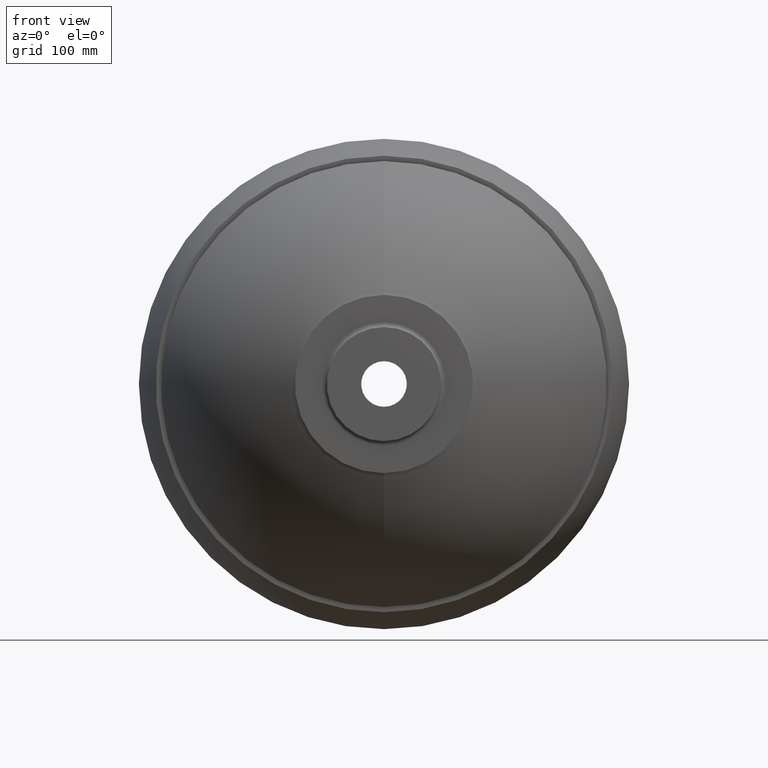
[diagram: clean part render]
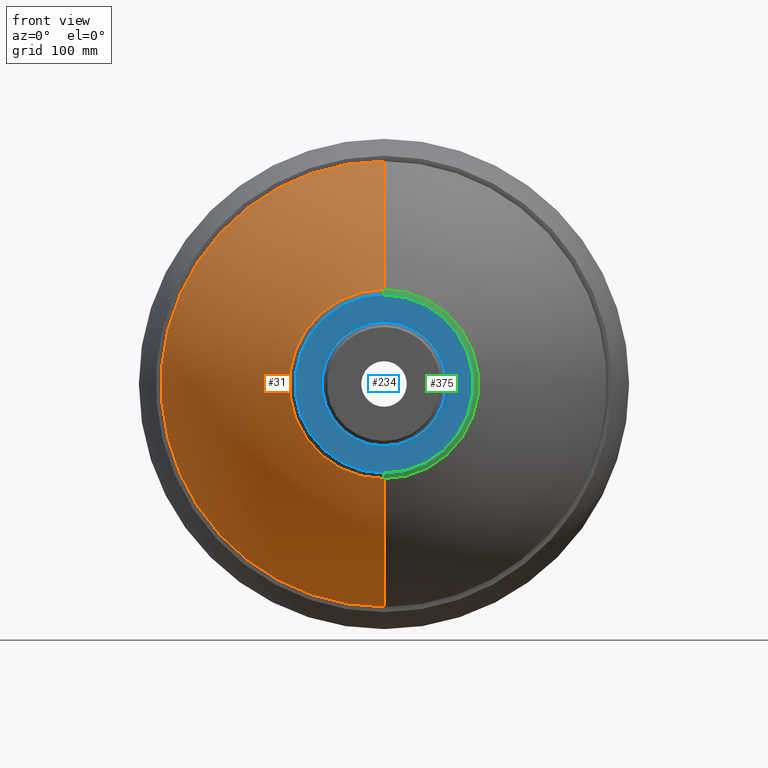
[diagram: same view with three faces highlighted in distinct colors, each labeled with its STEP entity id]
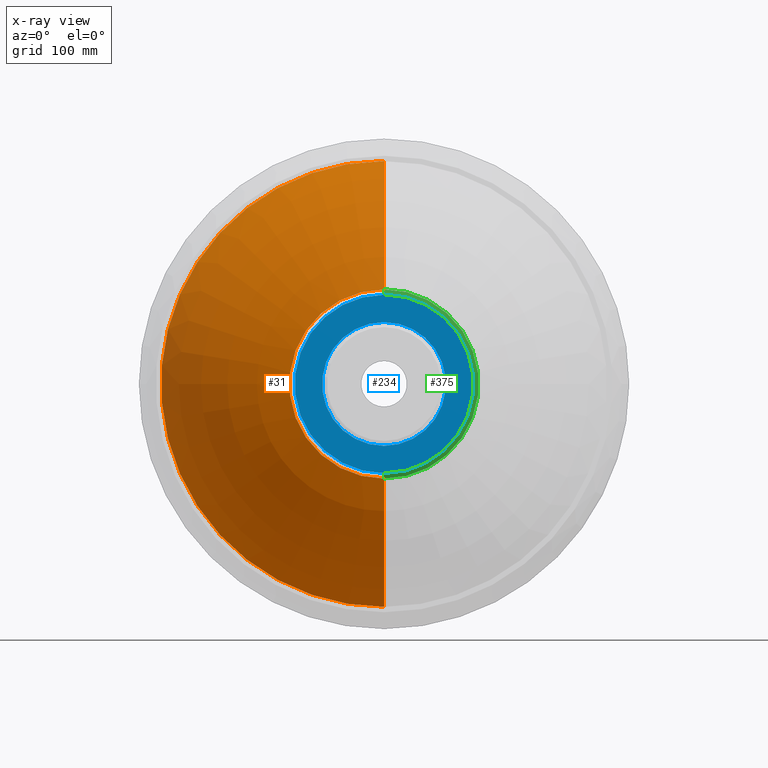
[diagram: x-ray of the same camera — body ghosted, the three highlighted faces saturated]
A machine part, front view with three faces highlighted in distinct colors.
The next image is the same camera in x-ray (body ghosted, the three faces saturated) — at least one of them is partly hidden behind the body in this view.
Their STEP definitions:

[orange] entity #31 — the highlighted toroidal blend (fillet) surface has major radius 1.9712 mm and minor (blend) radius 245.529 mm.
#31 = ADVANCED_FACE ( 'NONE', ( #96 ), #135, .T. ) ;
#52 = AXIS2_PLACEMENT_3D ( 'NONE', #576, #236, #250 ) ;
#55 = VERTEX_POINT ( 'NONE', #528 ) ;
#56 = AXIS2_PLACEMENT_3D ( 'NONE', #550, #547, #503 ) ;
#76 = VERTEX_POINT ( 'NONE', #443 ) ;
#77 = EDGE_CURVE ( 'NONE', #304, #168, #586, .T. ) ;
#83 = ORIENTED_EDGE ( 'NONE', *, *, #77, .T. ) ;
#89 = AXIS2_PLACEMENT_3D ( 'NONE', #572, #452, #454 ) ;
#92 = ORIENTED_EDGE ( 'NONE', *, *, #486, .T. ) ;
#96 = FACE_OUTER_BOUND ( 'NONE', #525, .T. ) ;
#102 = ORIENTED_EDGE ( 'NONE', *, *, #461, .F. ) ;
#120 = DIRECTION ( 'NONE',  ( 0.0000000000000000000, 0.0000000000000000000, -1.000000000000000000 ) ) ;
#121 = DIRECTION ( 'NONE',  ( -0.0000000000000000000, -1.000000000000000000, -0.0000000000000000000 ) ) ;
#124 = CARTESIAN_POINT ( 'NONE',  ( 0.0000000000000000000, 8.000000000000062200, 0.0000000000000000000 ) ) ;
#135 = TOROIDAL_SURFACE ( 'NONE', #89, 1.971218356854346700, 245.5287816431456600 ) ;
#168 = VERTEX_POINT ( 'NONE', #416 ) ;
#186 = CIRCLE ( 'NONE', #52, 245.5287816431456600 ) ;
#207 = AXIS2_PLACEMENT_3D ( 'NONE', #124, #121, #120 ) ;
#236 = DIRECTION ( 'NONE',  ( 1.000000000000000000, 0.0000000000000000000, -1.224646799147353200E-016 ) ) ;
#237 = CIRCLE ( 'NONE', #207, 95.54141989114369000 ) ;
#250 = DIRECTION ( 'NONE',  ( -1.224646799147353200E-016, 0.0000000000000000000, -1.000000000000000000 ) ) ;
#255 = ORIENTED_EDGE ( 'NONE', *, *, #288, .F. ) ;
#288 = EDGE_CURVE ( 'NONE', #304, #76, #186, .T. ) ;
#304 = VERTEX_POINT ( 'NONE', #573 ) ;
#313 = AXIS2_PLACEMENT_3D ( 'NONE', #575, #580, #531 ) ;
#416 = CARTESIAN_POINT ( 'NONE',  ( 0.0000000000000000000, 132.3231030175650500, -224.9999999999999700 ) ) ;
#443 = CARTESIAN_POINT ( 'NONE',  ( 1.170044940556824100E-014, 8.000000000000062200, 95.54141989114370400 ) ) ;
#452 = DIRECTION ( 'NONE',  ( -0.0000000000000000000, -1.000000000000000000, -0.0000000000000000000 ) ) ;
#454 = DIRECTION ( 'NONE',  ( 0.0000000000000000000, 0.0000000000000000000, -1.000000000000000000 ) ) ;
#461 = EDGE_CURVE ( 'NONE', #76, #55, #237, .T. ) ;
#486 = EDGE_CURVE ( 'NONE', #168, #55, #505, .T. ) ;
#503 = DIRECTION ( 'NONE',  ( 0.0000000000000000000, 0.0000000000000000000, 1.000000000000000000 ) ) ;
#505 = CIRCLE ( 'NONE', #56, 245.5287816431456600 ) ;
#525 = EDGE_LOOP ( 'NONE', ( #255, #83, #92, #102 ) ) ;
#528 = CARTESIAN_POINT ( 'NONE',  ( 0.0000000000000000000, 8.000000000000062200, -95.54141989114370400 ) ) ;
#531 = DIRECTION ( 'NONE',  ( 0.0000000000000000000, 0.0000000000000000000, -1.000000000000000000 ) ) ;
#547 = DIRECTION ( 'NONE',  ( -1.000000000000000000, 0.0000000000000000000, 0.0000000000000000000 ) ) ;
#550 = CARTESIAN_POINT ( 'NONE',  ( 0.0000000000000000000, 235.0000000000000000, -1.971218356854346700 ) ) ;
#572 = CARTESIAN_POINT ( 'NONE',  ( 0.0000000000000000000, 235.0000000000000000, 0.0000000000000000000 ) ) ;
#573 = CARTESIAN_POINT ( 'NONE',  ( 2.755455298081544300E-014, 132.3231030175650500, 224.9999999999999700 ) ) ;
#575 = CARTESIAN_POINT ( 'NONE',  ( 0.0000000000000000000, 132.3231030175650200, 0.0000000000000000000 ) ) ;
#576 = CARTESIAN_POINT ( 'NONE',  ( 2.414046251142180800E-016, 235.0000000000000000, 1.971218356854346700 ) ) ;
#580 = DIRECTION ( 'NONE',  ( -0.0000000000000000000, -1.000000000000000000, -0.0000000000000000000 ) ) ;
#586 = CIRCLE ( 'NONE', #313, 224.9999999999999700 ) ;

[blue] entity #234 — the highlighted planar face has unit normal (0, 1, 0).
#13 = ORIENTED_EDGE ( 'NONE', *, *, #498, .T. ) ;
#36 = EDGE_CURVE ( 'NONE', #578, #263, #190, .T. ) ;
#67 = EDGE_CURVE ( 'NONE', #263, #578, #146, .T. ) ;
#78 = AXIS2_PLACEMENT_3D ( 'NONE', #529, #559, #568 ) ;
#86 = EDGE_LOOP ( 'NONE', ( #88, #117 ) ) ;
#88 = ORIENTED_EDGE ( 'NONE', *, *, #36, .F. ) ;
#117 = ORIENTED_EDGE ( 'NONE', *, *, #67, .F. ) ;
#145 = VERTEX_POINT ( 'NONE', #312 ) ;
#146 = CIRCLE ( 'NONE', #78, 62.50000000000000000 ) ;
#162 = FACE_BOUND ( 'NONE', #86, .T. ) ;
#177 = EDGE_LOOP ( 'NONE', ( #13, #325 ) ) ;
#190 = CIRCLE ( 'NONE', #309, 62.50000000000000000 ) ;
#196 = VERTEX_POINT ( 'NONE', #492 ) ;
#234 = ADVANCED_FACE ( 'NONE', ( #162, #497 ), #273, .F. ) ;
#251 = CARTESIAN_POINT ( 'NONE',  ( -62.50000000000000000, 4.999999999999960900, 0.0000000000000000000 ) ) ;
#263 = VERTEX_POINT ( 'NONE', #298 ) ;
#273 = PLANE ( 'NONE',  #284 ) ;
#282 = DIRECTION ( 'NONE',  ( 0.0000000000000000000, -0.0000000000000000000, 1.000000000000000000 ) ) ;
#284 = AXIS2_PLACEMENT_3D ( 'NONE', #251, #296, #282 ) ;
#296 = DIRECTION ( 'NONE',  ( 0.0000000000000000000, 1.000000000000000000, 0.0000000000000000000 ) ) ;
#298 = CARTESIAN_POINT ( 'NONE',  ( 7.654042494670957800E-015, 4.999999999999948500, 62.50000000000000000 ) ) ;
#309 = AXIS2_PLACEMENT_3D ( 'NONE', #495, #526, #536 ) ;
#312 = CARTESIAN_POINT ( 'NONE',  ( 0.0000000000000000000, 4.999999999999973400, -90.00000000000000000 ) ) ;
#325 = ORIENTED_EDGE ( 'NONE', *, *, #493, .T. ) ;
#362 = DIRECTION ( 'NONE',  ( -0.0000000000000000000, -1.000000000000000000, -0.0000000000000000000 ) ) ;
#373 = DIRECTION ( 'NONE',  ( 0.0000000000000000000, 0.0000000000000000000, -1.000000000000000000 ) ) ;
#391 = AXIS2_PLACEMENT_3D ( 'NONE', #522, #396, #373 ) ;
#396 = DIRECTION ( 'NONE',  ( -0.0000000000000000000, -1.000000000000000000, -0.0000000000000000000 ) ) ;
#420 = AXIS2_PLACEMENT_3D ( 'NONE', #521, #362, #515 ) ;
#421 = CIRCLE ( 'NONE', #420, 90.00000000000000000 ) ;
#478 = CARTESIAN_POINT ( 'NONE',  ( 0.0000000000000000000, 4.999999999999948500, -62.50000000000000000 ) ) ;
#492 = CARTESIAN_POINT ( 'NONE',  ( 1.136113529894720900E-014, 4.999999999999973400, 90.00000000000000000 ) ) ;
#493 = EDGE_CURVE ( 'NONE', #196, #145, #581, .T. ) ;
#495 = CARTESIAN_POINT ( 'NONE',  ( 0.0000000000000000000, 4.999999999999948500, 0.0000000000000000000 ) ) ;
#497 = FACE_OUTER_BOUND ( 'NONE', #177, .T. ) ;
#498 = EDGE_CURVE ( 'NONE', #145, #196, #421, .T. ) ;
#515 = DIRECTION ( 'NONE',  ( 0.0000000000000000000, 0.0000000000000000000, -1.000000000000000000 ) ) ;
#521 = CARTESIAN_POINT ( 'NONE',  ( 0.0000000000000000000, 4.999999999999973400, 0.0000000000000000000 ) ) ;
#522 = CARTESIAN_POINT ( 'NONE',  ( 0.0000000000000000000, 4.999999999999973400, 0.0000000000000000000 ) ) ;
#526 = DIRECTION ( 'NONE',  ( -0.0000000000000000000, -1.000000000000000000, -0.0000000000000000000 ) ) ;
#529 = CARTESIAN_POINT ( 'NONE',  ( 0.0000000000000000000, 4.999999999999948500, 0.0000000000000000000 ) ) ;
#536 = DIRECTION ( 'NONE',  ( 0.0000000000000000000, 0.0000000000000000000, -1.000000000000000000 ) ) ;
#559 = DIRECTION ( 'NONE',  ( -0.0000000000000000000, -1.000000000000000000, -0.0000000000000000000 ) ) ;
#568 = DIRECTION ( 'NONE',  ( 0.0000000000000000000, 0.0000000000000000000, -1.000000000000000000 ) ) ;
#578 = VERTEX_POINT ( 'NONE', #478 ) ;
#581 = CIRCLE ( 'NONE', #391, 90.00000000000000000 ) ;

[green] entity #375 — the highlighted toroidal blend (fillet) surface has major radius 106.974 mm and minor (blend) radius 30 mm.
#19 = EDGE_CURVE ( 'NONE', #55, #76, #97, .T. ) ;
#55 = VERTEX_POINT ( 'NONE', #528 ) ;
#76 = VERTEX_POINT ( 'NONE', #443 ) ;
#84 = EDGE_LOOP ( 'NONE', ( #537, #178, #91, #227 ) ) ;
#91 = ORIENTED_EDGE ( 'NONE', *, *, #150, .T. ) ;
#97 = CIRCLE ( 'NONE', #258, 95.54141989114369000 ) ;
#108 = EDGE_CURVE ( 'NONE', #196, #76, #142, .T. ) ;
#142 = CIRCLE ( 'NONE', #160, 30.00000000000000000 ) ;
#145 = VERTEX_POINT ( 'NONE', #312 ) ;
#147 = AXIS2_PLACEMENT_3D ( 'NONE', #321, #409, #357 ) ;
#150 = EDGE_CURVE ( 'NONE', #145, #55, #388, .T. ) ;
#160 = AXIS2_PLACEMENT_3D ( 'NONE', #254, #402, #253 ) ;
#178 = ORIENTED_EDGE ( 'NONE', *, *, #498, .F. ) ;
#196 = VERTEX_POINT ( 'NONE', #492 ) ;
#227 = ORIENTED_EDGE ( 'NONE', *, *, #19, .T. ) ;
#253 = DIRECTION ( 'NONE',  ( -1.224646799147353000E-016, 0.0000000000000000000, -1.000000000000000000 ) ) ;
#254 = CARTESIAN_POINT ( 'NONE',  ( 1.310057586370893000E-014, -19.73605584822120900, 106.9743200474623600 ) ) ;
#258 = AXIS2_PLACEMENT_3D ( 'NONE', #458, #475, #463 ) ;
#260 = DIRECTION ( 'NONE',  ( 0.0000000000000000000, 0.0000000000000000000, 1.000000000000000000 ) ) ;
#267 = FACE_OUTER_BOUND ( 'NONE', #84, .T. ) ;
#312 = CARTESIAN_POINT ( 'NONE',  ( 0.0000000000000000000, 4.999999999999973400, -90.00000000000000000 ) ) ;
#321 = CARTESIAN_POINT ( 'NONE',  ( 0.0000000000000000000, -19.73605584822120900, 0.0000000000000000000 ) ) ;
#323 = AXIS2_PLACEMENT_3D ( 'NONE', #328, #472, #260 ) ;
#328 = CARTESIAN_POINT ( 'NONE',  ( 0.0000000000000000000, -19.73605584822120900, -106.9743200474623600 ) ) ;
#357 = DIRECTION ( 'NONE',  ( 0.0000000000000000000, 0.0000000000000000000, -1.000000000000000000 ) ) ;
#362 = DIRECTION ( 'NONE',  ( -0.0000000000000000000, -1.000000000000000000, -0.0000000000000000000 ) ) ;
#375 = ADVANCED_FACE ( 'NONE', ( #267 ), #376, .F. ) ;
#376 = TOROIDAL_SURFACE ( 'NONE', #147, 106.9743200474623600, 29.99999999999999600 ) ;
#388 = CIRCLE ( 'NONE', #323, 30.00000000000000000 ) ;
#402 = DIRECTION ( 'NONE',  ( 1.000000000000000000, 0.0000000000000000000, -1.224646799147353200E-016 ) ) ;
#409 = DIRECTION ( 'NONE',  ( -0.0000000000000000000, -1.000000000000000000, -0.0000000000000000000 ) ) ;
#420 = AXIS2_PLACEMENT_3D ( 'NONE', #521, #362, #515 ) ;
#421 = CIRCLE ( 'NONE', #420, 90.00000000000000000 ) ;
#443 = CARTESIAN_POINT ( 'NONE',  ( 1.170044940556824100E-014, 8.000000000000062200, 95.54141989114370400 ) ) ;
#458 = CARTESIAN_POINT ( 'NONE',  ( 0.0000000000000000000, 8.000000000000062200, 0.0000000000000000000 ) ) ;
#463 = DIRECTION ( 'NONE',  ( 0.0000000000000000000, 0.0000000000000000000, -1.000000000000000000 ) ) ;
#472 = DIRECTION ( 'NONE',  ( -1.000000000000000000, 0.0000000000000000000, 0.0000000000000000000 ) ) ;
#475 = DIRECTION ( 'NONE',  ( -0.0000000000000000000, -1.000000000000000000, -0.0000000000000000000 ) ) ;
#492 = CARTESIAN_POINT ( 'NONE',  ( 1.136113529894720900E-014, 4.999999999999973400, 90.00000000000000000 ) ) ;
#498 = EDGE_CURVE ( 'NONE', #145, #196, #421, .T. ) ;
#515 = DIRECTION ( 'NONE',  ( 0.0000000000000000000, 0.0000000000000000000, -1.000000000000000000 ) ) ;
#521 = CARTESIAN_POINT ( 'NONE',  ( 0.0000000000000000000, 4.999999999999973400, 0.0000000000000000000 ) ) ;
#528 = CARTESIAN_POINT ( 'NONE',  ( 0.0000000000000000000, 8.000000000000062200, -95.54141989114370400 ) ) ;
#537 = ORIENTED_EDGE ( 'NONE', *, *, #108, .F. ) ;